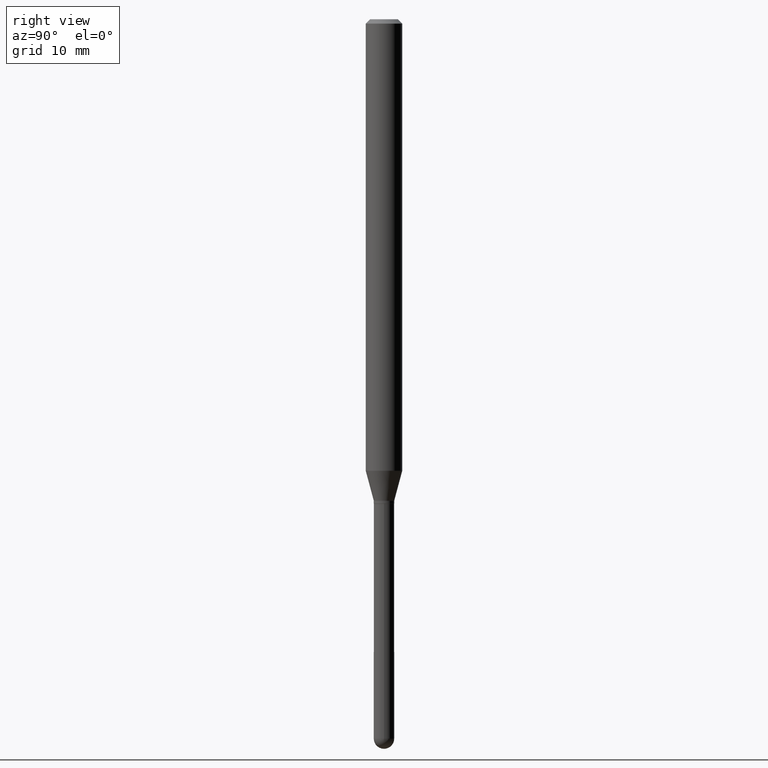
[diagram: clean part render]
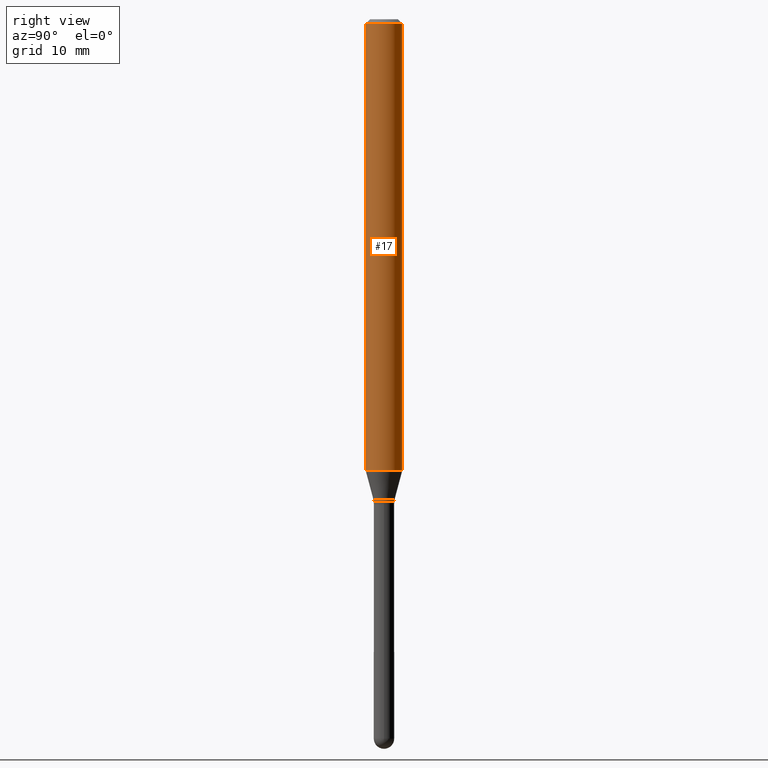
[diagram: same view with one face highlighted and labeled with its STEP entity id]
A machine part, right view. The second image highlights one B-rep face of the part: STEP entity #17.
In plain terms, the highlighted cylindrical surface (edge-blend (fillet) strip) has radius 1.5875 mm, axis along (-0, 0, 1).
Its self-contained STEP definition (entity closure, byte-faithful):
#4 = VERTEX_POINT ( 'NONE', #54 ) ;
#8 = ORIENTED_EDGE ( 'NONE', *, *, #281, .T. ) ;
#17 = ADVANCED_FACE ( 'NONE', ( #88 ), #203, .T. ) ;
#18 = DIRECTION ( 'NONE',  ( -6.982962677686265922E-15, -1.000000000000000000, 3.491567573796522971E-15 ) ) ;
#40 = CIRCLE ( 'NONE', #424, 0.06250000000000000000 ) ;
#42 = VERTEX_POINT ( 'NONE', #134 ) ;
#52 = VECTOR ( 'NONE', #462, 39.37007874015748143 ) ;
#54 = CARTESIAN_POINT ( 'NONE',  ( 4.440892098501000871E-16, 0.06249999999999455991, -1.547368602791856063 ) ) ;
#65 = VECTOR ( 'NONE', #334, 39.37007874015748143 ) ;
#75 = CARTESIAN_POINT ( 'NONE',  ( -4.364351673553916201E-16, -0.06250000000000000000, 2.182229733622826857E-16 ) ) ;
#82 = ORIENTED_EDGE ( 'NONE', *, *, #380, .F. ) ;
#88 = FACE_OUTER_BOUND ( 'NONE', #346, .T. ) ;
#130 = DIRECTION ( 'NONE',  ( -2.445408588639041950E-29, 3.491567573796523366E-15, 1.000000000000000000 ) ) ;
#134 = CARTESIAN_POINT ( 'NONE',  ( -4.364351673553912750E-16, -0.06250000000000005551, -0.01500000000000011047 ) ) ;
#144 = AXIS2_PLACEMENT_3D ( 'NONE', #206, #493, #164 ) ;
#151 = VERTEX_POINT ( 'NONE', #322 ) ;
#164 = DIRECTION ( 'NONE',  ( -6.982962677686265922E-15, -1.000000000000000000, 3.483106191921935554E-15 ) ) ;
#182 = LINE ( 'NONE', #335, #52 ) ;
#189 = EDGE_CURVE ( 'NONE', #151, #4, #40, .T. ) ;
#197 = ORIENTED_EDGE ( 'NONE', *, *, #351, .F. ) ;
#203 = CYLINDRICAL_SURFACE ( 'NONE', #406, 0.06250000000000000000 ) ;
#206 = CARTESIAN_POINT ( 'NONE',  ( 3.668112882958643079E-31, -5.237351360694899581E-17, -0.01500000000000032904 ) ) ;
#281 = EDGE_CURVE ( 'NONE', #4, #429, #182, .T. ) ;
#285 = CARTESIAN_POINT ( 'NONE',  ( 0.000000000000000000, 0.000000000000000000, 0.000000000000000000 ) ) ;
#309 = CARTESIAN_POINT ( 'NONE',  ( 4.440892098501006787E-16, 0.06249999999999995143, -0.01500000000000054588 ) ) ;
#322 = CARTESIAN_POINT ( 'NONE',  ( -4.364351673553540013E-16, -0.06250000000000544009, -1.547368602791855396 ) ) ;
#331 = ORIENTED_EDGE ( 'NONE', *, *, #189, .T. ) ;
#334 = DIRECTION ( 'NONE',  ( -2.445408588639042230E-29, 3.491567573796523366E-15, 1.000000000000000000 ) ) ;
#335 = CARTESIAN_POINT ( 'NONE',  ( 4.440892098500625669E-16, 0.06250000000000000000, -2.182229733622826857E-16 ) ) ;
#346 = EDGE_LOOP ( 'NONE', ( #331, #8, #197, #82 ) ) ;
#351 = EDGE_CURVE ( 'NONE', #42, #429, #374, .T. ) ;
#374 = CIRCLE ( 'NONE', #144, 0.06250000000000000000 ) ;
#380 = EDGE_CURVE ( 'NONE', #151, #42, #426, .T. ) ;
#406 = AXIS2_PLACEMENT_3D ( 'NONE', #285, #130, #18 ) ;
#424 = AXIS2_PLACEMENT_3D ( 'NONE', #508, #438, #446 ) ;
#426 = LINE ( 'NONE', #75, #65 ) ;
#429 = VERTEX_POINT ( 'NONE', #309 ) ;
#438 = DIRECTION ( 'NONE',  ( -2.445408588639041950E-29, 3.491567573796523366E-15, 1.000000000000000000 ) ) ;
#446 = DIRECTION ( 'NONE',  ( -6.982962677686265922E-15, -1.000000000000000000, 4.370956789862821150E-15 ) ) ;
#462 = DIRECTION ( 'NONE',  ( -2.445408588639042230E-29, 3.491567573796523366E-15, 1.000000000000000000 ) ) ;
#493 = DIRECTION ( 'NONE',  ( -2.445408588639041950E-29, 3.491567573796523366E-15, 1.000000000000000000 ) ) ;
#508 = CARTESIAN_POINT ( 'NONE',  ( 3.783948471057598170E-29, -5.402742038218876257E-15, -1.547368602791855619 ) ) ;